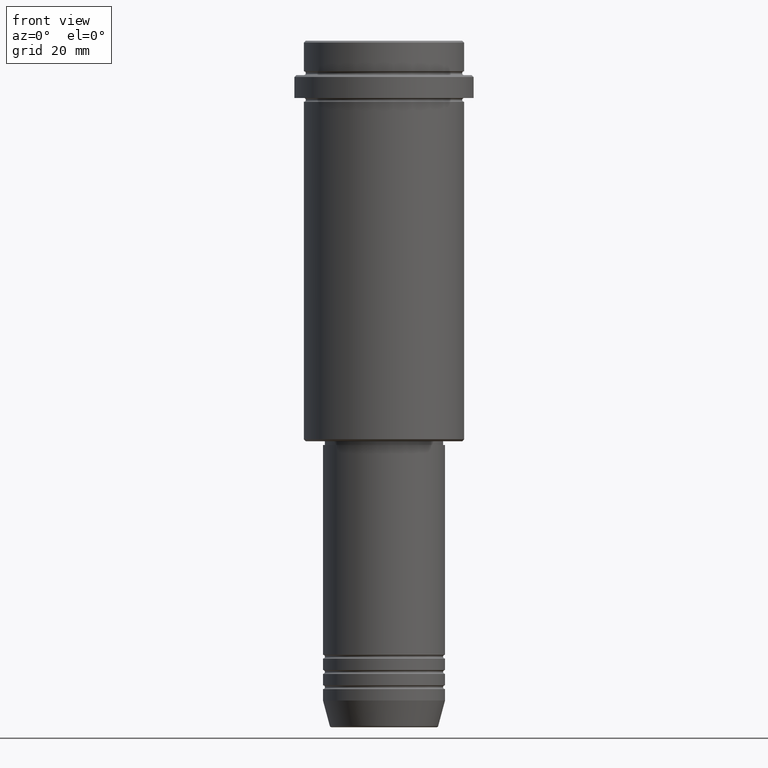
[diagram: clean part render]
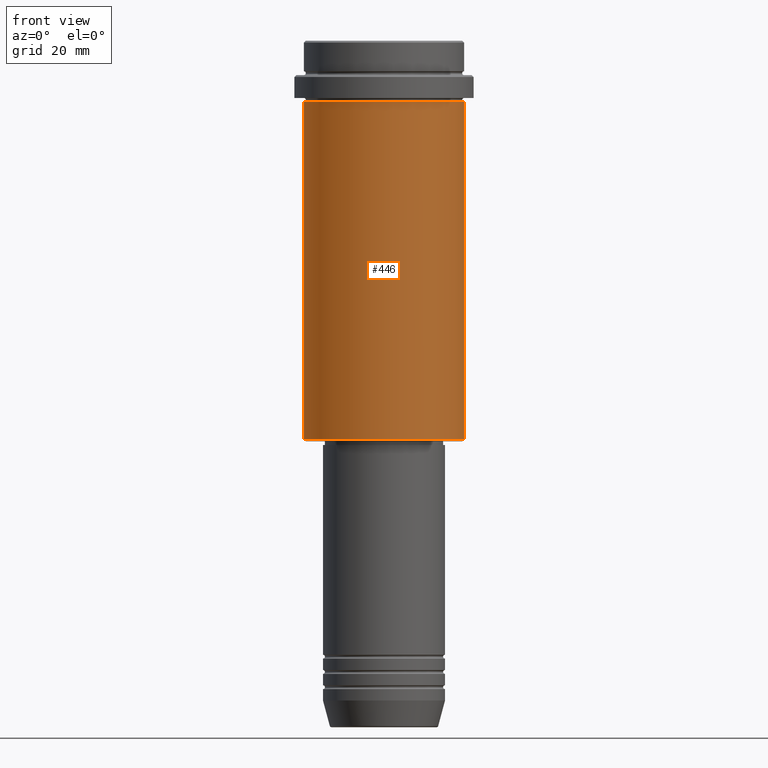
[diagram: same view with one face highlighted and labeled with its STEP entity id]
A machine part, front view. The second image highlights one B-rep face of the part: STEP entity #446.
In plain terms, the highlighted cylindrical surface (partial cylindrical patch) has radius 21 mm, axis along (-0, -0, 1).
Its self-contained STEP definition (entity closure, byte-faithful):
#25 = VERTEX_POINT ( 'NONE', #1371 ) ;
#85 = DIRECTION ( 'NONE',  ( 1.000000000000000000, 0.000000000000000000, 0.000000000000000000 ) ) ;
#138 = CARTESIAN_POINT ( 'NONE',  ( 0.000000000000000000, 0.000000000000000000, -104.4999999999999858 ) ) ;
#140 = VECTOR ( 'NONE', #699, 1000.000000000000000 ) ;
#148 = ORIENTED_EDGE ( 'NONE', *, *, #273, .T. ) ;
#152 = EDGE_CURVE ( 'NONE', #1324, #25, #1084, .T. ) ;
#230 = VECTOR ( 'NONE', #755, 1000.000000000000000 ) ;
#267 = CARTESIAN_POINT ( 'NONE',  ( -21.00000000000000000, 2.571758278209441661E-15, 0.000000000000000000 ) ) ;
#273 = EDGE_CURVE ( 'NONE', #884, #25, #774, .T. ) ;
#290 = VERTEX_POINT ( 'NONE', #1112 ) ;
#298 = AXIS2_PLACEMENT_3D ( 'NONE', #304, #736, #85 ) ;
#304 = CARTESIAN_POINT ( 'NONE',  ( 0.000000000000000000, 0.000000000000000000, -16.00000000000000355 ) ) ;
#314 = CARTESIAN_POINT ( 'NONE',  ( 21.00000000000000000, 0.000000000000000000, -104.4999999999999858 ) ) ;
#446 = ADVANCED_FACE ( 'NONE', ( #1350 ), #696, .T. ) ;
#447 = ORIENTED_EDGE ( 'NONE', *, *, #760, .F. ) ;
#476 = DIRECTION ( 'NONE',  ( 1.000000000000000000, 0.000000000000000000, 0.000000000000000000 ) ) ;
#487 = CIRCLE ( 'NONE', #1220, 21.00000000000000000 ) ;
#515 = ORIENTED_EDGE ( 'NONE', *, *, #1340, .T. ) ;
#539 = CARTESIAN_POINT ( 'NONE',  ( 21.00000000000000000, 0.000000000000000000, 0.000000000000000000 ) ) ;
#566 = DIRECTION ( 'NONE',  ( -1.000000000000000000, 0.000000000000000000, 0.000000000000000000 ) ) ;
#581 = CARTESIAN_POINT ( 'NONE',  ( 0.000000000000000000, 0.000000000000000000, 0.000000000000000000 ) ) ;
#696 = CYLINDRICAL_SURFACE ( 'NONE', #922, 21.00000000000000000 ) ;
#699 = DIRECTION ( 'NONE',  ( -0.000000000000000000, -0.000000000000000000, 1.000000000000000000 ) ) ;
#736 = DIRECTION ( 'NONE',  ( -0.000000000000000000, -0.000000000000000000, 1.000000000000000000 ) ) ;
#755 = DIRECTION ( 'NONE',  ( -0.000000000000000000, -0.000000000000000000, 1.000000000000000000 ) ) ;
#760 = EDGE_CURVE ( 'NONE', #290, #1324, #1160, .T. ) ;
#765 = EDGE_LOOP ( 'NONE', ( #447, #515, #148, #987 ) ) ;
#774 = LINE ( 'NONE', #539, #230 ) ;
#884 = VERTEX_POINT ( 'NONE', #314 ) ;
#922 = AXIS2_PLACEMENT_3D ( 'NONE', #581, #1252, #476 ) ;
#987 = ORIENTED_EDGE ( 'NONE', *, *, #152, .F. ) ;
#1039 = CARTESIAN_POINT ( 'NONE',  ( -21.00000000000000000, 2.571758278209441661E-15, -16.00000000000000355 ) ) ;
#1084 = CIRCLE ( 'NONE', #298, 21.00000000000000000 ) ;
#1112 = CARTESIAN_POINT ( 'NONE',  ( -21.00000000000000000, 2.571758278209441661E-15, -104.4999999999999858 ) ) ;
#1160 = LINE ( 'NONE', #267, #140 ) ;
#1220 = AXIS2_PLACEMENT_3D ( 'NONE', #138, #1261, #566 ) ;
#1252 = DIRECTION ( 'NONE',  ( -0.000000000000000000, -0.000000000000000000, 1.000000000000000000 ) ) ;
#1261 = DIRECTION ( 'NONE',  ( -0.000000000000000000, -0.000000000000000000, 1.000000000000000000 ) ) ;
#1324 = VERTEX_POINT ( 'NONE', #1039 ) ;
#1340 = EDGE_CURVE ( 'NONE', #290, #884, #487, .T. ) ;
#1350 = FACE_OUTER_BOUND ( 'NONE', #765, .T. ) ;
#1371 = CARTESIAN_POINT ( 'NONE',  ( 21.00000000000000000, 0.000000000000000000, -16.00000000000000355 ) ) ;